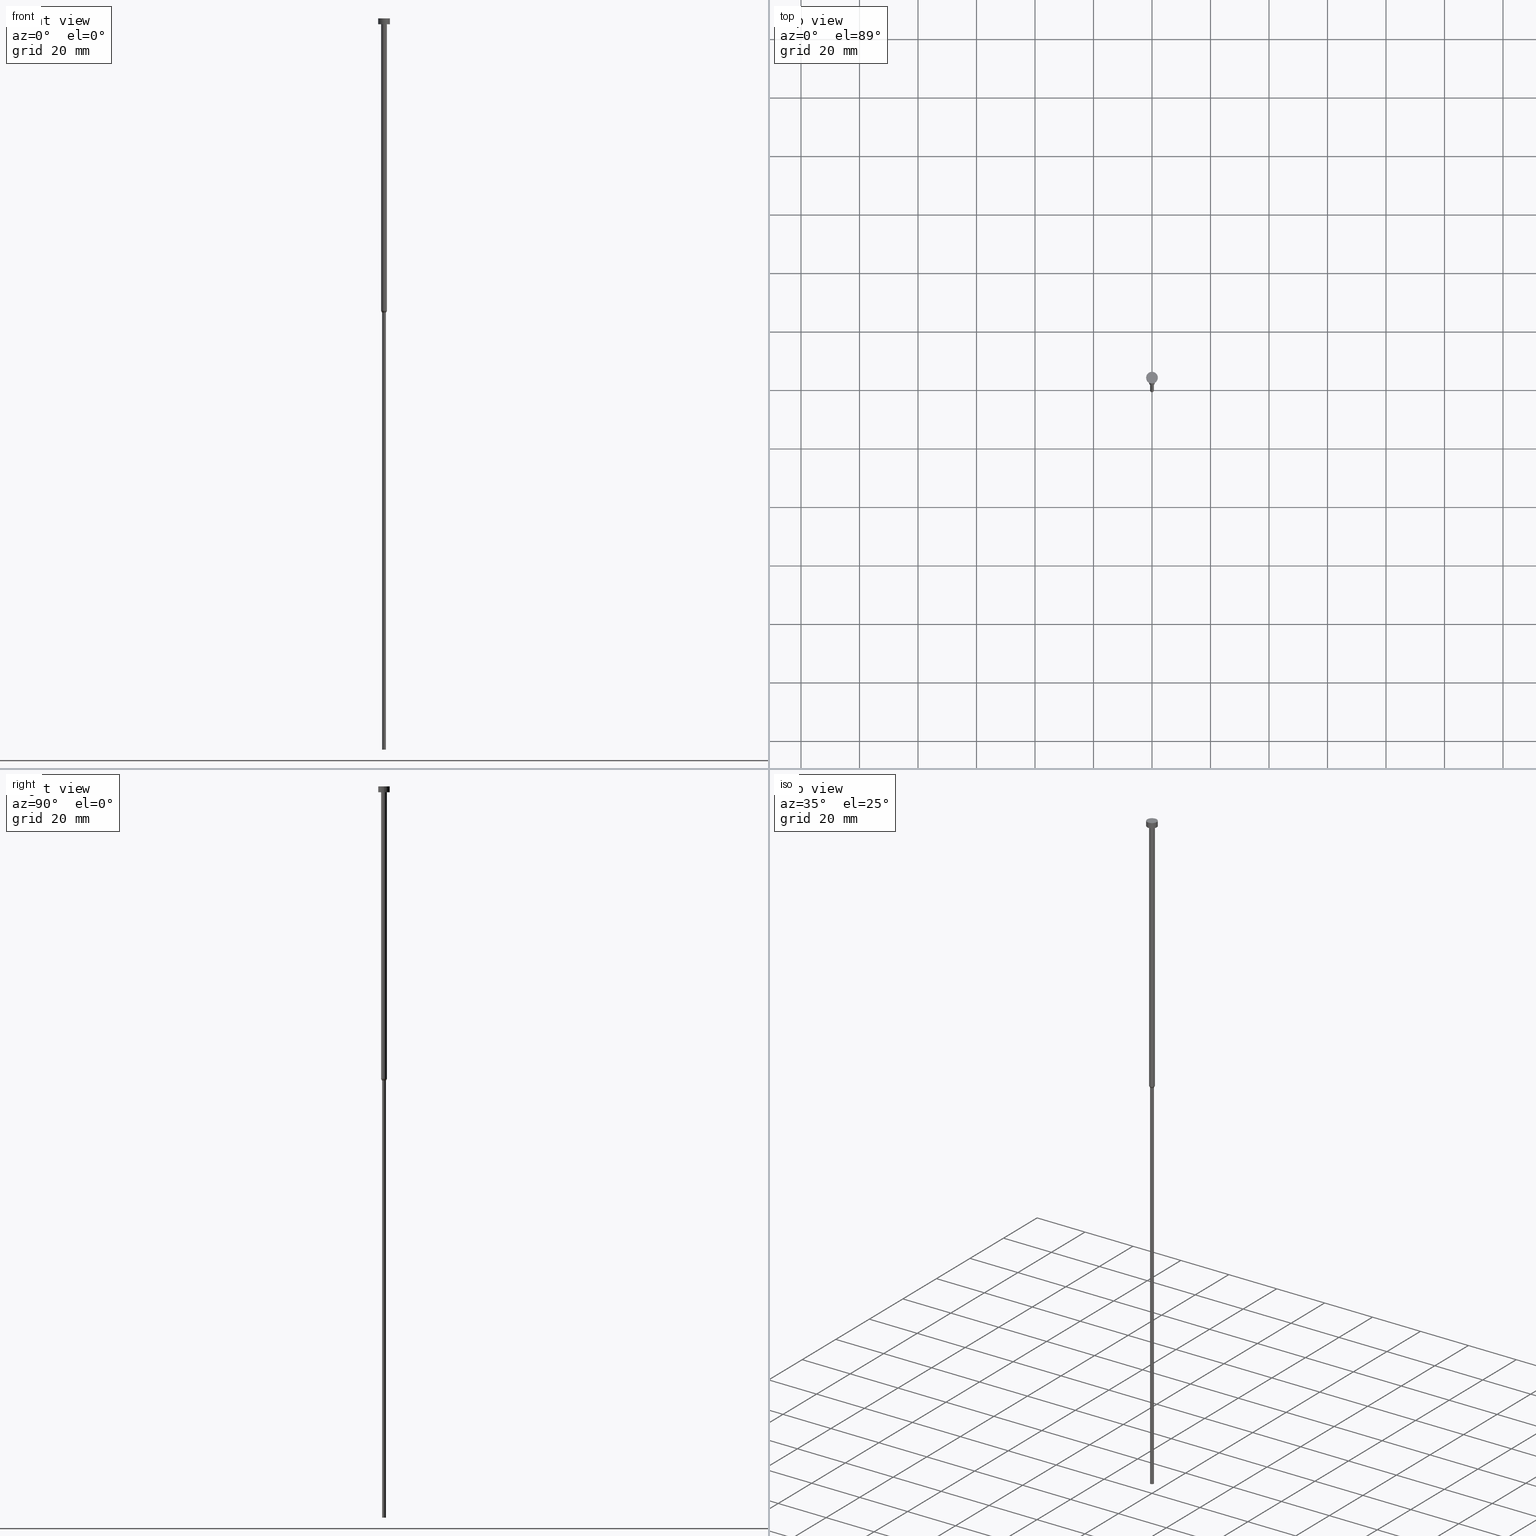
[diagram: canonical four-view strip — front | top / right | iso, engineering-drawing reading convention]
A machine part, canonical four-view strip (front | top / right | iso — engineering-drawing reading convention). The complete STEP part file that produces these views, byte-faithful:
ISO-10303-21;
HEADER;
FILE_DESCRIPTION (( 'STEP AP203' ),
    '1' );
FILE_NAME ('7ec6.STEP',
    '2023-02-13T10:57:40',
    ( '' ),
    ( '' ),
    'SwSTEP 2.0',
    'SolidWorks 2019',
    '' );
FILE_SCHEMA (( 'CONFIG_CONTROL_DESIGN' ));
ENDSEC;

DATA;
#1 = VECTOR ( 'NONE', #51, 1000.000000000000000 ) ;
#2 =( LENGTH_UNIT ( ) NAMED_UNIT ( * ) SI_UNIT ( .MILLI., .METRE. ) );
#3 = CARTESIAN_POINT ( 'NONE',  ( 2.000000000000000000, 0.000000000000000000, 0.000000000000000000 ) ) ;
#4 = PERSON_AND_ORGANIZATION_ROLE ( 'design_supplier' ) ;
#5 = EDGE_CURVE ( 'NONE', #281, #26, #318, .T. ) ;
#6 = SHAPE_DEFINITION_REPRESENTATION ( #271, #274 ) ;
#7 = EDGE_CURVE ( 'NONE', #275, #295, #131, .T. ) ;
#8 = ORIENTED_EDGE ( 'NONE', *, *, #186, .F. ) ;
#9 = DIRECTION ( 'NONE',  ( -0.000000000000000000, -0.000000000000000000, 1.000000000000000000 ) ) ;
#10 = APPROVAL_STATUS ( 'not_yet_approved' ) ;
#11 = ORIENTED_EDGE ( 'NONE', *, *, #116, .F. ) ;
#12 = FACE_BOUND ( 'NONE', #267, .T. ) ;
#13 = CARTESIAN_POINT ( 'NONE',  ( 0.000000000000000000, 0.000000000000000000, -2.000000000000000444 ) ) ;
#14 = CONICAL_SURFACE ( 'NONE', #68, 1.000000000000003109, 0.5235987755983045888 ) ;
#15 = AXIS2_PLACEMENT_3D ( 'NONE', #319, #165, #139 ) ;
#16 = FACE_OUTER_BOUND ( 'NONE', #172, .T. ) ;
#17 = CARTESIAN_POINT ( 'NONE',  ( -0.6500000000000000222, 7.960204194457795477E-17, 0.000000000000000000 ) ) ;
#18 = EDGE_CURVE ( 'NONE', #310, #155, #200, .T. ) ;
#19 = CARTESIAN_POINT ( 'NONE',  ( 0.000000000000000000, 0.000000000000000000, 0.000000000000000000 ) ) ;
#20 = FACE_OUTER_BOUND ( 'NONE', #190, .T. ) ;
#21 = ADVANCED_FACE ( 'NONE', ( #199 ), #169, .T. ) ;
#22 = ORIENTED_EDGE ( 'NONE', *, *, #238, .F. ) ;
#23 = DIRECTION ( 'NONE',  ( 1.000000000000000000, 0.000000000000000000, 0.000000000000000000 ) ) ;
#24 = VECTOR ( 'NONE', #198, 1000.000000000000000 ) ;
#25 = CARTESIAN_POINT ( 'NONE',  ( 0.000000000000000000, 0.000000000000000000, -100.6062177826491109 ) ) ;
#26 = VERTEX_POINT ( 'NONE', #326 ) ;
#27 = DIRECTION ( 'NONE',  ( -0.000000000000000000, -0.000000000000000000, 1.000000000000000000 ) ) ;
#28 = DIRECTION ( 'NONE',  ( 1.000000000000000000, 0.000000000000000000, 0.000000000000000000 ) ) ;
#29 = AXIS2_PLACEMENT_3D ( 'NONE', #82, #52, #171 ) ;
#30 = EDGE_CURVE ( 'NONE', #36, #155, #78, .T. ) ;
#31 = APPLICATION_CONTEXT ( 'configuration controlled 3d designs of mechanical parts and assemblies' ) ;
#32 = DATE_TIME_ROLE ( 'classification_date' ) ;
#33 = PLANE ( 'NONE',  #179 ) ;
#34 = DATE_AND_TIME ( #338, #333 ) ;
#35 = EDGE_CURVE ( 'NONE', #295, #130, #246, .T. ) ;
#36 = VERTEX_POINT ( 'NONE', #79 ) ;
#37 = VECTOR ( 'NONE', #137, 1000.000000000000000 ) ;
#38 = PERSON_AND_ORGANIZATION ( #249, #221 ) ;
#39 = ORIENTED_EDGE ( 'NONE', *, *, #5, .F. ) ;
#40 = DIRECTION ( 'NONE',  ( 1.000000000000000000, 0.000000000000000000, 0.000000000000000000 ) ) ;
#41 = ORIENTED_EDGE ( 'NONE', *, *, #238, .T. ) ;
#42 = AXIS2_PLACEMENT_3D ( 'NONE', #245, #282, #86 ) ;
#43 = ADVANCED_FACE ( 'NONE', ( #80 ), #220, .T. ) ;
#44 = DIRECTION ( 'NONE',  ( 1.000000000000000000, 0.000000000000000000, 0.000000000000000000 ) ) ;
#45 = LINE ( 'NONE', #346, #67 ) ;
#46 = PRODUCT ( '7ec6', '7ec6', '', ( #240 ) ) ;
#47 = EDGE_LOOP ( 'NONE', ( #266, #92 ) ) ;
#48 = CYLINDRICAL_SURFACE ( 'NONE', #285, 0.6500000000000000222 ) ;
#49 = AXIS2_PLACEMENT_3D ( 'NONE', #216, #320, #192 ) ;
#50 = ADVANCED_FACE ( 'NONE', ( #344 ), #48, .T. ) ;
#51 = DIRECTION ( 'NONE',  ( -0.000000000000000000, -0.000000000000000000, 1.000000000000000000 ) ) ;
#52 = DIRECTION ( 'NONE',  ( -0.000000000000000000, -0.000000000000000000, 1.000000000000000000 ) ) ;
#53 = DIRECTION ( 'NONE',  ( 1.000000000000000000, 0.000000000000000000, 0.000000000000000000 ) ) ;
#54 = ADVANCED_FACE ( 'NONE', ( #268 ), #224, .T. ) ;
#55 = CARTESIAN_POINT ( 'NONE',  ( 0.000000000000000000, 0.000000000000000000, -250.0000000000000000 ) ) ;
#56 = LINE ( 'NONE', #3, #89 ) ;
#57 = ORIENTED_EDGE ( 'NONE', *, *, #35, .F. ) ;
#58 = FACE_OUTER_BOUND ( 'NONE', #170, .T. ) ;
#59 = PRODUCT_RELATED_PRODUCT_CATEGORY ( 'detail', '', ( #46 ) ) ;
#60 = ORIENTED_EDGE ( 'NONE', *, *, #154, .F. ) ;
#61 = AXIS2_PLACEMENT_3D ( 'NONE', #252, #206, #40 ) ;
#62 = AXIS2_PLACEMENT_3D ( 'NONE', #25, #146, #250 ) ;
#63 = DIRECTION ( 'NONE',  ( -0.000000000000000000, -0.000000000000000000, 1.000000000000000000 ) ) ;
#64 = CARTESIAN_POINT ( 'NONE',  ( 0.000000000000000000, 0.000000000000000000, -2.000000000000000444 ) ) ;
#65 = COORDINATED_UNIVERSAL_TIME_OFFSET ( 1, 0, .AHEAD. ) ;
#66 = VECTOR ( 'NONE', #225, 1000.000000000000114 ) ;
#67 = VECTOR ( 'NONE', #299, 1000.000000000000114 ) ;
#68 = AXIS2_PLACEMENT_3D ( 'NONE', #227, #297, #104 ) ;
#69 = ORIENTED_EDGE ( 'NONE', *, *, #208, .T. ) ;
#70 = CARTESIAN_POINT ( 'NONE',  ( 0.000000000000000000, 0.000000000000000000, -2.000000000000000444 ) ) ;
#71 = EDGE_CURVE ( 'NONE', #84, #36, #239, .T. ) ;
#72 = PERSON_AND_ORGANIZATION_ROLE ( 'creator' ) ;
#73 = ORIENTED_EDGE ( 'NONE', *, *, #7, .F. ) ;
#74 = DATE_AND_TIME ( #316, #129 ) ;
#75 = ORIENTED_EDGE ( 'NONE', *, *, #254, .T. ) ;
#76 = CC_DESIGN_DATE_AND_TIME_ASSIGNMENT ( #74, #32, ( #243 ) ) ;
#77 = ORIENTED_EDGE ( 'NONE', *, *, #18, .F. ) ;
#78 = LINE ( 'NONE', #17, #1 ) ;
#79 = CARTESIAN_POINT ( 'NONE',  ( -0.6500000000000000222, 7.960204194457795477E-17, -250.0000000000000000 ) ) ;
#80 = FACE_OUTER_BOUND ( 'NONE', #343, .T. ) ;
#81 = EDGE_CURVE ( 'NONE', #155, #281, #166, .T. ) ;
#82 = CARTESIAN_POINT ( 'NONE',  ( 0.000000000000000000, 0.000000000000000000, 0.000000000000000000 ) ) ;
#83 = CIRCLE ( 'NONE', #95, 2.000000000000000000 ) ;
#84 = VERTEX_POINT ( 'NONE', #144 ) ;
#85 = PRODUCT_DEFINITION ( 'NEZN�M�', '', #143, #93 ) ;
#86 = DIRECTION ( 'NONE',  ( -1.000000000000000000, 0.000000000000000000, -0.000000000000000000 ) ) ;
#87 = DIRECTION ( 'NONE',  ( -0.000000000000000000, -0.000000000000000000, 1.000000000000000000 ) ) ;
#88 = LINE ( 'NONE', #304, #24 ) ;
#89 = VECTOR ( 'NONE', #176, 1000.000000000000000 ) ;
#90 = PERSON_AND_ORGANIZATION ( #249, #221 ) ;
#91 = DATE_AND_TIME ( #308, #101 ) ;
#92 = ORIENTED_EDGE ( 'NONE', *, *, #148, .F. ) ;
#93 = DESIGN_CONTEXT ( 'detailed design', #302, 'design' ) ;
#94 =( GEOMETRIC_REPRESENTATION_CONTEXT ( 3 ) GLOBAL_UNCERTAINTY_ASSIGNED_CONTEXT ( ( #290 ) ) GLOBAL_UNIT_ASSIGNED_CONTEXT ( ( #2, #327, #117 ) ) REPRESENTATION_CONTEXT ( 'NONE', 'WORKASPACE' ) );
#95 = AXIS2_PLACEMENT_3D ( 'NONE', #202, #27, #177 ) ;
#96 = ORIENTED_EDGE ( 'NONE', *, *, #208, .F. ) ;
#97 = PERSON_AND_ORGANIZATION_ROLE ( 'classification_officer' ) ;
#98 = ADVANCED_FACE ( 'NONE', ( #325 ), #197, .T. ) ;
#99 = PERSON_AND_ORGANIZATION_ROLE ( 'creator' ) ;
#100 = FACE_OUTER_BOUND ( 'NONE', #47, .T. ) ;
#101 = LOCAL_TIME ( 11, 57, 40.00000000000000000, #65 ) ;
#102 = CIRCLE ( 'NONE', #204, 1.000000000000003553 ) ;
#103 = CC_DESIGN_PERSON_AND_ORGANIZATION_ASSIGNMENT ( #156, #311, ( #46 ) ) ;
#104 = DIRECTION ( 'NONE',  ( 1.000000000000000000, 0.000000000000000000, 0.000000000000000000 ) ) ;
#105 = EDGE_CURVE ( 'NONE', #295, #275, #133, .T. ) ;
#106 = CARTESIAN_POINT ( 'NONE',  ( 2.000000000000000000, 0.000000000000000000, -2.449293598294705921E-16 ) ) ;
#107 = DIRECTION ( 'NONE',  ( -0.000000000000000000, -0.000000000000000000, 1.000000000000000000 ) ) ;
#108 = LINE ( 'NONE', #276, #37 ) ;
#109 = DIRECTION ( 'NONE',  ( -0.000000000000000000, -0.000000000000000000, 1.000000000000000000 ) ) ;
#110 = DIRECTION ( 'NONE',  ( 1.000000000000000000, 0.000000000000000000, 0.000000000000000000 ) ) ;
#111 = DIRECTION ( 'NONE',  ( 1.000000000000000000, 0.000000000000000000, 0.000000000000000000 ) ) ;
#112 = DIRECTION ( 'NONE',  ( 1.000000000000000000, 0.000000000000000000, 0.000000000000000000 ) ) ;
#113 = DIRECTION ( 'NONE',  ( -0.000000000000000000, -0.000000000000000000, 1.000000000000000000 ) ) ;
#114 = ORIENTED_EDGE ( 'NONE', *, *, #35, .T. ) ;
#115 = CARTESIAN_POINT ( 'NONE',  ( 0.000000000000000000, 0.000000000000000000, 0.000000000000000000 ) ) ;
#116 = EDGE_CURVE ( 'NONE', #182, #127, #102, .T. ) ;
#117 =( NAMED_UNIT ( * ) SI_UNIT ( $, .STERADIAN. ) SOLID_ANGLE_UNIT ( ) );
#118 = EDGE_CURVE ( 'NONE', #155, #310, #342, .T. ) ;
#119 = CC_DESIGN_APPROVAL ( #323, ( #143 ) ) ;
#120 = CALENDAR_DATE ( 2023, 13, 2 ) ;
#121 = SECURITY_CLASSIFICATION_LEVEL ( 'unclassified' ) ;
#122 = ORIENTED_EDGE ( 'NONE', *, *, #71, .T. ) ;
#123 = EDGE_LOOP ( 'NONE', ( #235, #287, #22, #96 ) ) ;
#124 = ADVANCED_FACE ( 'NONE', ( #353 ), #14, .T. ) ;
#125 = PERSON_AND_ORGANIZATION ( #249, #221 ) ;
#126 = APPROVAL ( #153, 'NEUR�EN�' ) ;
#127 = VERTEX_POINT ( 'NONE', #272 ) ;
#128 = COORDINATED_UNIVERSAL_TIME_OFFSET ( 1, 0, .AHEAD. ) ;
#129 = LOCAL_TIME ( 11, 57, 40.00000000000000000, #236 ) ;
#130 = VERTEX_POINT ( 'NONE', #138 ) ;
#131 = CIRCLE ( 'NONE', #293, 2.000000000000000000 ) ;
#132 = DATE_AND_TIME ( #265, #329 ) ;
#133 = CIRCLE ( 'NONE', #324, 2.000000000000000000 ) ;
#134 = CARTESIAN_POINT ( 'NONE',  ( 0.000000000000000000, 0.000000000000000000, -2.000000000000000444 ) ) ;
#135 = CIRCLE ( 'NONE', #292, 1.000000000000003553 ) ;
#136 = PLANE ( 'NONE',  #42 ) ;
#137 = DIRECTION ( 'NONE',  ( -0.000000000000000000, -0.000000000000000000, 1.000000000000000000 ) ) ;
#138 = CARTESIAN_POINT ( 'NONE',  ( -2.000000000000000000, 2.449293598294706414E-16, -2.449293598294705921E-16 ) ) ;
#139 = DIRECTION ( 'NONE',  ( -1.000000000000000000, 0.000000000000000000, -0.000000000000000000 ) ) ;
#140 = CARTESIAN_POINT ( 'NONE',  ( -1.000000000000003109, 1.224646799147356905E-16, -100.0000000000000000 ) ) ;
#141 = CARTESIAN_POINT ( 'NONE',  ( 0.000000000000000000, 0.000000000000000000, 0.000000000000000000 ) ) ;
#142 = ORIENTED_EDGE ( 'NONE', *, *, #81, .T. ) ;
#143 = PRODUCT_DEFINITION_FORMATION_WITH_SPECIFIED_SOURCE ( 'LIBOVOLN�', '', #46, .NOT_KNOWN. ) ;
#144 = CARTESIAN_POINT ( 'NONE',  ( 0.6500000000000000222, 0.000000000000000000, -250.0000000000000000 ) ) ;
#145 = AXIS2_PLACEMENT_3D ( 'NONE', #328, #277, #111 ) ;
#146 = DIRECTION ( 'NONE',  ( -0.000000000000000000, -0.000000000000000000, 1.000000000000000000 ) ) ;
#147 = ORIENTED_EDGE ( 'NONE', *, *, #5, .T. ) ;
#148 = EDGE_CURVE ( 'NONE', #36, #84, #150, .T. ) ;
#149 = DIRECTION ( 'NONE',  ( -0.000000000000000000, -0.000000000000000000, 1.000000000000000000 ) ) ;
#150 = CIRCLE ( 'NONE', #264, 0.6500000000000000222 ) ;
#151 = APPROVAL_ROLE ( '' ) ;
#152 = AXIS2_PLACEMENT_3D ( 'NONE', #294, #313, #44 ) ;
#153 = APPROVAL_STATUS ( 'not_yet_approved' ) ;
#154 = EDGE_CURVE ( 'NONE', #281, #182, #248, .T. ) ;
#155 = VERTEX_POINT ( 'NONE', #222 ) ;
#156 = PERSON_AND_ORGANIZATION ( #249, #221 ) ;
#157 = ORIENTED_EDGE ( 'NONE', *, *, #7, .T. ) ;
#158 = APPLICATION_PROTOCOL_DEFINITION ( 'international standard', 'config_control_design', 1994, #302 ) ;
#159 = VECTOR ( 'NONE', #109, 1000.000000000000000 ) ;
#160 = DIRECTION ( 'NONE',  ( 1.000000000000000000, 0.000000000000000000, 0.000000000000000000 ) ) ;
#161 = DIRECTION ( 'NONE',  ( 1.000000000000000000, 0.000000000000000000, 0.000000000000000000 ) ) ;
#162 = CC_DESIGN_PERSON_AND_ORGANIZATION_ASSIGNMENT ( #214, #97, ( #243 ) ) ;
#163 = CARTESIAN_POINT ( 'NONE',  ( 0.6500000000000000222, 0.000000000000000000, -100.6062177826491109 ) ) ;
#164 = ADVANCED_FACE ( 'NONE', ( #100 ), #218, .T. ) ;
#165 = DIRECTION ( 'NONE',  ( 0.000000000000000000, 0.000000000000000000, -1.000000000000000000 ) ) ;
#166 = LINE ( 'NONE', #195, #66 ) ;
#167 = AXIS2_PLACEMENT_3D ( 'NONE', #19, #322, #193 ) ;
#168 = DIRECTION ( 'NONE',  ( 1.000000000000000000, 0.000000000000000000, 0.000000000000000000 ) ) ;
#169 = CYLINDRICAL_SURFACE ( 'NONE', #167, 1.000000000000003331 ) ;
#170 = EDGE_LOOP ( 'NONE', ( #315, #237 ) ) ;
#171 = DIRECTION ( 'NONE',  ( 1.000000000000000000, 0.000000000000000000, 0.000000000000000000 ) ) ;
#172 = EDGE_LOOP ( 'NONE', ( #73, #289 ) ) ;
#173 = DIRECTION ( 'NONE',  ( 0.000000000000000000, -0.000000000000000000, 1.000000000000000000 ) ) ;
#174 = DIRECTION ( 'NONE',  ( 1.000000000000000000, 0.000000000000000000, 0.000000000000000000 ) ) ;
#175 = CC_DESIGN_SECURITY_CLASSIFICATION ( #243, ( #143 ) ) ;
#176 = DIRECTION ( 'NONE',  ( -0.000000000000000000, -0.000000000000000000, 1.000000000000000000 ) ) ;
#177 = DIRECTION ( 'NONE',  ( 1.000000000000000000, 0.000000000000000000, 0.000000000000000000 ) ) ;
#178 = ORIENTED_EDGE ( 'NONE', *, *, #118, .F. ) ;
#179 = AXIS2_PLACEMENT_3D ( 'NONE', #306, #173, #286 ) ;
#180 = ADVANCED_FACE ( 'NONE', ( #20 ), #354, .T. ) ;
#181 = PERSON_AND_ORGANIZATION ( #249, #221 ) ;
#182 = VERTEX_POINT ( 'NONE', #223 ) ;
#183 = EDGE_LOOP ( 'NONE', ( #331, #142, #213, #260 ) ) ;
#184 = COORDINATED_UNIVERSAL_TIME_OFFSET ( 1, 0, .AHEAD. ) ;
#185 = DIRECTION ( 'NONE',  ( -0.000000000000000000, -0.000000000000000000, 1.000000000000000000 ) ) ;
#186 = EDGE_CURVE ( 'NONE', #130, #215, #253, .T. ) ;
#187 = APPROVAL_DATE_TIME ( #34, #323 ) ;
#188 = LOCAL_TIME ( 11, 57, 40.00000000000000000, #256 ) ;
#189 = CC_DESIGN_PERSON_AND_ORGANIZATION_ASSIGNMENT ( #90, #72, ( #85 ) ) ;
#190 = EDGE_LOOP ( 'NONE', ( #191, #263, #75, #178 ) ) ;
#191 = ORIENTED_EDGE ( 'NONE', *, *, #30, .F. ) ;
#192 = DIRECTION ( 'NONE',  ( 1.000000000000000000, 0.000000000000000000, 0.000000000000000000 ) ) ;
#193 = DIRECTION ( 'NONE',  ( 1.000000000000000000, 0.000000000000000000, 0.000000000000000000 ) ) ;
#194 = APPROVAL ( #10, 'NEUR�EN�' ) ;
#195 = CARTESIAN_POINT ( 'NONE',  ( -1.000000000000003109, 1.224646799147356905E-16, -100.0000000000000000 ) ) ;
#196 = DIRECTION ( 'NONE',  ( -0.000000000000000000, -0.000000000000000000, 1.000000000000000000 ) ) ;
#197 = CYLINDRICAL_SURFACE ( 'NONE', #284, 2.000000000000000000 ) ;
#198 = DIRECTION ( 'NONE',  ( -0.000000000000000000, -0.000000000000000000, 1.000000000000000000 ) ) ;
#199 = FACE_OUTER_BOUND ( 'NONE', #303, .T. ) ;
#200 = CIRCLE ( 'NONE', #255, 0.6500000000000000222 ) ;
#201 = ORIENTED_EDGE ( 'NONE', *, *, #116, .T. ) ;
#202 = CARTESIAN_POINT ( 'NONE',  ( 0.000000000000000000, 0.000000000000000000, -2.449293598294705921E-16 ) ) ;
#203 = CIRCLE ( 'NONE', #49, 1.000000000000003109 ) ;
#204 = AXIS2_PLACEMENT_3D ( 'NONE', #134, #196, #53 ) ;
#205 = EDGE_CURVE ( 'NONE', #26, #281, #203, .T. ) ;
#206 = DIRECTION ( 'NONE',  ( 0.000000000000000000, 0.000000000000000000, 1.000000000000000000 ) ) ;
#207 = CC_DESIGN_DATE_AND_TIME_ASSIGNMENT ( #91, #335, ( #85 ) ) ;
#208 = EDGE_CURVE ( 'NONE', #26, #127, #108, .T. ) ;
#209 = PERSON_AND_ORGANIZATION ( #249, #221 ) ;
#210 = VECTOR ( 'NONE', #113, 1000.000000000000000 ) ;
#211 = ORIENTED_EDGE ( 'NONE', *, *, #30, .T. ) ;
#212 = PERSON_AND_ORGANIZATION ( #249, #221 ) ;
#213 = ORIENTED_EDGE ( 'NONE', *, *, #205, .F. ) ;
#214 = PERSON_AND_ORGANIZATION ( #249, #221 ) ;
#215 = VERTEX_POINT ( 'NONE', #106 ) ;
#216 = CARTESIAN_POINT ( 'NONE',  ( 0.000000000000000000, 0.000000000000000000, -100.0000000000000000 ) ) ;
#217 = DIRECTION ( 'NONE',  ( -0.000000000000000000, -0.000000000000000000, 1.000000000000000000 ) ) ;
#218 = PLANE ( 'NONE',  #15 ) ;
#219 = ADVANCED_FACE ( 'NONE', ( #305 ), #231, .T. ) ;
#220 = CYLINDRICAL_SURFACE ( 'NONE', #29, 2.000000000000000000 ) ;
#221 = ORGANIZATION ( 'NEUR�EN�', 'NEUR�EN�', '' ) ;
#222 = CARTESIAN_POINT ( 'NONE',  ( -0.6500000000000000222, 7.960204194457795477E-17, -100.6062177826491109 ) ) ;
#223 = CARTESIAN_POINT ( 'NONE',  ( -1.000000000000003553, 1.224646799147357398E-16, -2.000000000000000444 ) ) ;
#224 = CONICAL_SURFACE ( 'NONE', #145, 1.000000000000003109, 0.5235987755983045888 ) ;
#225 = DIRECTION ( 'NONE',  ( -0.5000000000000049960, 6.123233995736827666E-17, 0.8660254037844358210 ) ) ;
#226 = CC_DESIGN_PERSON_AND_ORGANIZATION_ASSIGNMENT ( #181, #99, ( #143 ) ) ;
#227 = CARTESIAN_POINT ( 'NONE',  ( 0.000000000000000000, 0.000000000000000000, -100.0000000000000000 ) ) ;
#228 = ORIENTED_EDGE ( 'NONE', *, *, #341, .T. ) ;
#229 = APPROVAL_PERSON_ORGANIZATION ( #125, #323, #339 ) ;
#230 = AXIS2_PLACEMENT_3D ( 'NONE', #348, #149, #110 ) ;
#231 = CYLINDRICAL_SURFACE ( 'NONE', #288, 1.000000000000003331 ) ;
#232 = EDGE_CURVE ( 'NONE', #215, #130, #83, .T. ) ;
#233 = APPROVAL_ROLE ( '' ) ;
#234 = APPROVAL_DATE_TIME ( #259, #126 ) ;
#235 = ORIENTED_EDGE ( 'NONE', *, *, #205, .T. ) ;
#236 = COORDINATED_UNIVERSAL_TIME_OFFSET ( 1, 0, .AHEAD. ) ;
#237 = ORIENTED_EDGE ( 'NONE', *, *, #186, .T. ) ;
#238 = EDGE_CURVE ( 'NONE', #127, #182, #135, .T. ) ;
#239 = CIRCLE ( 'NONE', #336, 0.6500000000000000222 ) ;
#240 = MECHANICAL_CONTEXT ( 'NONE', #31, 'mechanical' ) ;
#241 = ORIENTED_EDGE ( 'NONE', *, *, #341, .F. ) ;
#242 = ORIENTED_EDGE ( 'NONE', *, *, #118, .T. ) ;
#243 = SECURITY_CLASSIFICATION ( '', '', #121 ) ;
#244 = DIRECTION ( 'NONE',  ( 1.000000000000000000, 0.000000000000000000, 0.000000000000000000 ) ) ;
#245 = CARTESIAN_POINT ( 'NONE',  ( 0.000000000000000000, -2.000000000000000000, -2.000000000000000444 ) ) ;
#246 = LINE ( 'NONE', #296, #210 ) ;
#247 = CARTESIAN_POINT ( 'NONE',  ( -2.000000000000000000, 2.449293598294706414E-16, -2.000000000000000444 ) ) ;
#248 = LINE ( 'NONE', #347, #159 ) ;
#249 = PERSON ( 'NEUR�EN�', 'NEUR�EN�', 'NEUR�EN�', ('NEUR�EN�'), ('NEUR�EN�'), ('NEUR�EN�') ) ;
#250 = DIRECTION ( 'NONE',  ( 1.000000000000000000, 0.000000000000000000, 0.000000000000000000 ) ) ;
#251 = EDGE_LOOP ( 'NONE', ( #351, #242, #330, #39 ) ) ;
#252 = CARTESIAN_POINT ( 'NONE',  ( 0.000000000000000000, 0.000000000000000000, 0.000000000000000000 ) ) ;
#253 = CIRCLE ( 'NONE', #349, 2.000000000000000000 ) ;
#254 = EDGE_CURVE ( 'NONE', #84, #310, #88, .T. ) ;
#255 = AXIS2_PLACEMENT_3D ( 'NONE', #291, #9, #160 ) ;
#256 = COORDINATED_UNIVERSAL_TIME_OFFSET ( 1, 0, .AHEAD. ) ;
#257 = MANIFOLD_SOLID_BREP ( 'Rotovat1', #312 ) ;
#258 = EDGE_LOOP ( 'NONE', ( #122, #211, #77, #355 ) ) ;
#259 = DATE_AND_TIME ( #120, #188 ) ;
#260 = ORIENTED_EDGE ( 'NONE', *, *, #309, .F. ) ;
#261 = APPROVAL_DATE_TIME ( #132, #194 ) ;
#262 = CC_DESIGN_PERSON_AND_ORGANIZATION_ASSIGNMENT ( #209, #4, ( #143 ) ) ;
#263 = ORIENTED_EDGE ( 'NONE', *, *, #148, .T. ) ;
#264 = AXIS2_PLACEMENT_3D ( 'NONE', #345, #107, #273 ) ;
#265 = CALENDAR_DATE ( 2023, 13, 2 ) ;
#266 = ORIENTED_EDGE ( 'NONE', *, *, #71, .F. ) ;
#267 = EDGE_LOOP ( 'NONE', ( #41, #201 ) ) ;
#268 = FACE_OUTER_BOUND ( 'NONE', #183, .T. ) ;
#269 = ADVANCED_FACE ( 'NONE', ( #58 ), #33, .T. ) ;
#270 = CARTESIAN_POINT ( 'NONE',  ( 2.000000000000000000, 0.000000000000000000, -2.000000000000000444 ) ) ;
#271 = PRODUCT_DEFINITION_SHAPE ( 'NONE', 'NONE',  #85 ) ;
#272 = CARTESIAN_POINT ( 'NONE',  ( 1.000000000000003553, 0.000000000000000000, -2.000000000000000444 ) ) ;
#273 = DIRECTION ( 'NONE',  ( 1.000000000000000000, 0.000000000000000000, 0.000000000000000000 ) ) ;
#274 = ADVANCED_BREP_SHAPE_REPRESENTATION ( '7ec6', ( #257, #61 ), #94 ) ;
#275 = VERTEX_POINT ( 'NONE', #270 ) ;
#276 = CARTESIAN_POINT ( 'NONE',  ( 1.000000000000003331, 0.000000000000000000, 0.000000000000000000 ) ) ;
#277 = DIRECTION ( 'NONE',  ( -0.000000000000000000, -0.000000000000000000, 1.000000000000000000 ) ) ;
#278 = CC_DESIGN_APPROVAL ( #194, ( #85 ) ) ;
#279 = CARTESIAN_POINT ( 'NONE',  ( 0.000000000000000000, 0.000000000000000000, -2.449293598294705921E-16 ) ) ;
#280 = CARTESIAN_POINT ( 'NONE',  ( 0.000000000000000000, 0.000000000000000000, 0.000000000000000000 ) ) ;
#281 = VERTEX_POINT ( 'NONE', #140 ) ;
#282 = DIRECTION ( 'NONE',  ( 0.000000000000000000, 0.000000000000000000, -1.000000000000000000 ) ) ;
#283 = APPROVAL_PERSON_ORGANIZATION ( #212, #194, #233 ) ;
#284 = AXIS2_PLACEMENT_3D ( 'NONE', #141, #298, #244 ) ;
#285 = AXIS2_PLACEMENT_3D ( 'NONE', #280, #301, #168 ) ;
#286 = DIRECTION ( 'NONE',  ( 1.000000000000000000, 0.000000000000000000, 0.000000000000000000 ) ) ;
#287 = ORIENTED_EDGE ( 'NONE', *, *, #154, .T. ) ;
#288 = AXIS2_PLACEMENT_3D ( 'NONE', #115, #87, #28 ) ;
#289 = ORIENTED_EDGE ( 'NONE', *, *, #105, .F. ) ;
#290 = UNCERTAINTY_MEASURE_WITH_UNIT (LENGTH_MEASURE( 1.000000000000000082E-05 ), #2, 'distance_accuracy_value', 'NONE');
#291 = CARTESIAN_POINT ( 'NONE',  ( 0.000000000000000000, 0.000000000000000000, -100.6062177826491109 ) ) ;
#292 = AXIS2_PLACEMENT_3D ( 'NONE', #64, #63, #174 ) ;
#293 = AXIS2_PLACEMENT_3D ( 'NONE', #70, #185, #161 ) ;
#294 = CARTESIAN_POINT ( 'NONE',  ( 0.000000000000000000, 0.000000000000000000, -100.0000000000000000 ) ) ;
#295 = VERTEX_POINT ( 'NONE', #247 ) ;
#296 = CARTESIAN_POINT ( 'NONE',  ( -2.000000000000000000, 2.449293598294706414E-16, 0.000000000000000000 ) ) ;
#297 = DIRECTION ( 'NONE',  ( -0.000000000000000000, -0.000000000000000000, 1.000000000000000000 ) ) ;
#298 = DIRECTION ( 'NONE',  ( -0.000000000000000000, -0.000000000000000000, 1.000000000000000000 ) ) ;
#299 = DIRECTION ( 'NONE',  ( 0.5000000000000049960, 0.000000000000000000, 0.8660254037844358210 ) ) ;
#300 = DIRECTION ( 'NONE',  ( 1.000000000000000000, 0.000000000000000000, 0.000000000000000000 ) ) ;
#301 = DIRECTION ( 'NONE',  ( -0.000000000000000000, -0.000000000000000000, 1.000000000000000000 ) ) ;
#302 = APPLICATION_CONTEXT ( 'configuration controlled 3d designs of mechanical parts and assemblies' ) ;
#303 = EDGE_LOOP ( 'NONE', ( #60, #147, #69, #11 ) ) ;
#304 = CARTESIAN_POINT ( 'NONE',  ( 0.6500000000000000222, 0.000000000000000000, 0.000000000000000000 ) ) ;
#305 = FACE_OUTER_BOUND ( 'NONE', #123, .T. ) ;
#306 = CARTESIAN_POINT ( 'NONE',  ( 0.000000000000000000, 0.000000000000000000, -1.224646799147352961E-16 ) ) ;
#307 = CC_DESIGN_APPROVAL ( #126, ( #243 ) ) ;
#308 = CALENDAR_DATE ( 2023, 13, 2 ) ;
#309 = EDGE_CURVE ( 'NONE', #310, #26, #45, .T. ) ;
#310 = VERTEX_POINT ( 'NONE', #163 ) ;
#311 = PERSON_AND_ORGANIZATION_ROLE ( 'design_owner' ) ;
#312 = CLOSED_SHELL ( 'NONE', ( #43, #219, #54, #50, #164, #180, #124, #21, #334, #98, #269 ) ) ;
#313 = DIRECTION ( 'NONE',  ( -0.000000000000000000, -0.000000000000000000, 1.000000000000000000 ) ) ;
#314 = APPROVAL_STATUS ( 'not_yet_approved' ) ;
#315 = ORIENTED_EDGE ( 'NONE', *, *, #232, .T. ) ;
#316 = CALENDAR_DATE ( 2023, 13, 2 ) ;
#317 = APPROVAL_PERSON_ORGANIZATION ( #38, #126, #151 ) ;
#318 = CIRCLE ( 'NONE', #152, 1.000000000000003109 ) ;
#319 = CARTESIAN_POINT ( 'NONE',  ( 0.000000000000000000, 0.000000000000000000, -250.0000000000000000 ) ) ;
#320 = DIRECTION ( 'NONE',  ( -0.000000000000000000, -0.000000000000000000, 1.000000000000000000 ) ) ;
#321 = DIRECTION ( 'NONE',  ( -0.000000000000000000, -0.000000000000000000, 1.000000000000000000 ) ) ;
#322 = DIRECTION ( 'NONE',  ( -0.000000000000000000, -0.000000000000000000, 1.000000000000000000 ) ) ;
#323 = APPROVAL ( #314, 'NEUR�EN�' ) ;
#324 = AXIS2_PLACEMENT_3D ( 'NONE', #13, #321, #300 ) ;
#325 = FACE_OUTER_BOUND ( 'NONE', #350, .T. ) ;
#326 = CARTESIAN_POINT ( 'NONE',  ( 1.000000000000003109, 0.000000000000000000, -100.0000000000000000 ) ) ;
#327 =( NAMED_UNIT ( * ) PLANE_ANGLE_UNIT ( ) SI_UNIT ( $, .RADIAN. ) );
#328 = CARTESIAN_POINT ( 'NONE',  ( 0.000000000000000000, 0.000000000000000000, -100.0000000000000000 ) ) ;
#329 = LOCAL_TIME ( 11, 57, 40.00000000000000000, #184 ) ;
#330 = ORIENTED_EDGE ( 'NONE', *, *, #309, .T. ) ;
#331 = ORIENTED_EDGE ( 'NONE', *, *, #18, .T. ) ;
#332 = APPLICATION_PROTOCOL_DEFINITION ( 'international standard', 'config_control_design', 1994, #31 ) ;
#333 = LOCAL_TIME ( 11, 57, 40.00000000000000000, #128 ) ;
#334 = ADVANCED_FACE ( 'NONE', ( #12, #16 ), #136, .T. ) ;
#335 = DATE_TIME_ROLE ( 'creation_date' ) ;
#336 = AXIS2_PLACEMENT_3D ( 'NONE', #55, #217, #23 ) ;
#337 = ORIENTED_EDGE ( 'NONE', *, *, #105, .T. ) ;
#338 = CALENDAR_DATE ( 2023, 13, 2 ) ;
#339 = APPROVAL_ROLE ( '' ) ;
#340 = ORIENTED_EDGE ( 'NONE', *, *, #232, .F. ) ;
#341 = EDGE_CURVE ( 'NONE', #275, #215, #56, .T. ) ;
#342 = CIRCLE ( 'NONE', #62, 0.6500000000000000222 ) ;
#343 = EDGE_LOOP ( 'NONE', ( #157, #114, #340, #241 ) ) ;
#344 = FACE_OUTER_BOUND ( 'NONE', #258, .T. ) ;
#345 = CARTESIAN_POINT ( 'NONE',  ( 0.000000000000000000, 0.000000000000000000, -250.0000000000000000 ) ) ;
#346 = CARTESIAN_POINT ( 'NONE',  ( 1.000000000000003109, 0.000000000000000000, -100.0000000000000000 ) ) ;
#347 = CARTESIAN_POINT ( 'NONE',  ( -1.000000000000003331, 1.224646799147357151E-16, 0.000000000000000000 ) ) ;
#348 = CARTESIAN_POINT ( 'NONE',  ( 0.000000000000000000, 0.000000000000000000, 0.000000000000000000 ) ) ;
#349 = AXIS2_PLACEMENT_3D ( 'NONE', #279, #352, #112 ) ;
#350 = EDGE_LOOP ( 'NONE', ( #57, #337, #228, #8 ) ) ;
#351 = ORIENTED_EDGE ( 'NONE', *, *, #81, .F. ) ;
#352 = DIRECTION ( 'NONE',  ( -0.000000000000000000, -0.000000000000000000, 1.000000000000000000 ) ) ;
#353 = FACE_OUTER_BOUND ( 'NONE', #251, .T. ) ;
#354 = CYLINDRICAL_SURFACE ( 'NONE', #230, 0.6500000000000000222 ) ;
#355 = ORIENTED_EDGE ( 'NONE', *, *, #254, .F. ) ;
ENDSEC;
END-ISO-10303-21;
